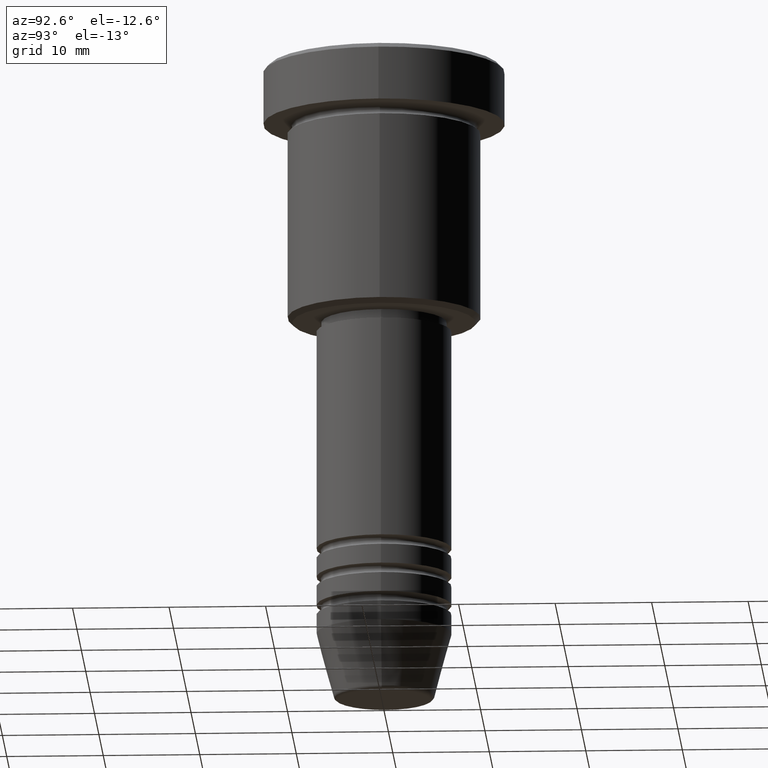
[diagram: clean part render]
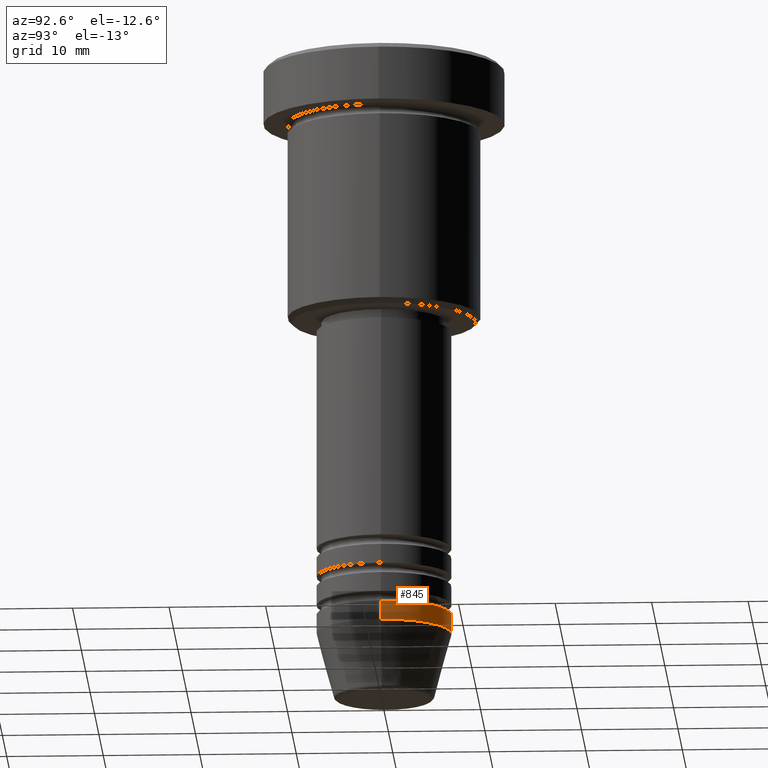
[diagram: same view with one face highlighted and labeled with its STEP entity id]
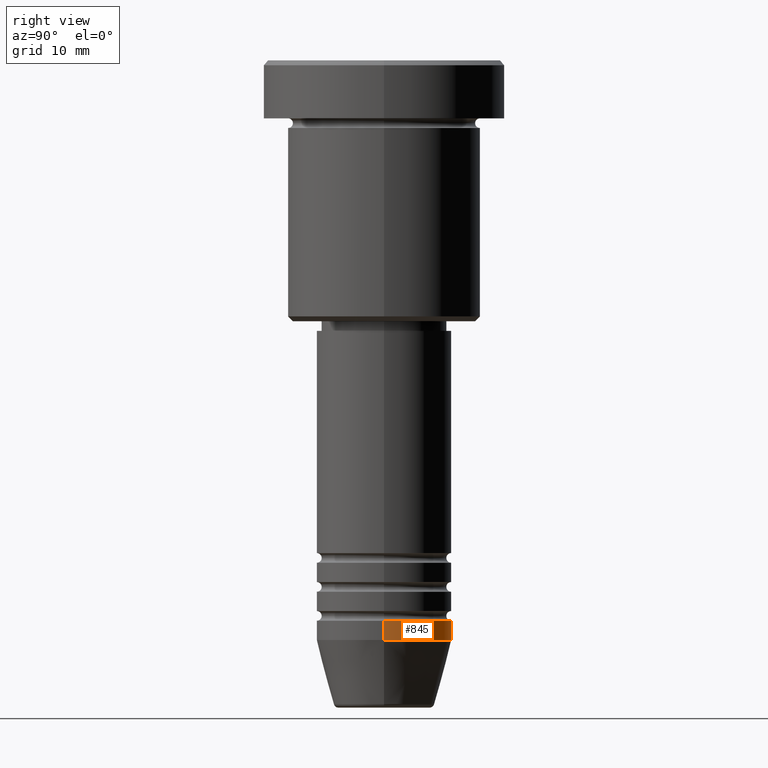
[diagram: same view with one face highlighted and labeled with its STEP entity id]
A machine part, auxiliary view. The second image highlights one B-rep face of the part: STEP entity #845.
A second angle (right view) of the same face is appended — the face is thin or edge-on in the first view.
In plain terms, the highlighted cylindrical surface (partial cylindrical patch) has radius 7 mm, axis along (-0, -0, 1).
Its self-contained STEP definition (entity closure, byte-faithful):
#9 = CARTESIAN_POINT ( 'NONE',  ( 0.000000000000000000, 0.000000000000000000, -57.99999999999999289 ) ) ;
#15 = DIRECTION ( 'NONE',  ( 1.000000000000000000, 0.000000000000000000, 0.000000000000000000 ) ) ;
#79 = ORIENTED_EDGE ( 'NONE', *, *, #1121, .F. ) ;
#86 = LINE ( 'NONE', #1019, #776 ) ;
#91 = LINE ( 'NONE', #812, #874 ) ;
#156 = EDGE_CURVE ( 'NONE', #1133, #604, #86, .T. ) ;
#165 = EDGE_CURVE ( 'NONE', #1085, #544, #91, .T. ) ;
#207 = CARTESIAN_POINT ( 'NONE',  ( 7.000000000000000000, 0.000000000000000000, -60.00000000000000000 ) ) ;
#215 = CARTESIAN_POINT ( 'NONE',  ( -7.000000000000000000, 8.572527594031473190E-16, -60.00000000000000000 ) ) ;
#277 = AXIS2_PLACEMENT_3D ( 'NONE', #677, #595, #765 ) ;
#318 = FACE_OUTER_BOUND ( 'NONE', #541, .T. ) ;
#382 = DIRECTION ( 'NONE',  ( -0.000000000000000000, -0.000000000000000000, 1.000000000000000000 ) ) ;
#421 = DIRECTION ( 'NONE',  ( 1.000000000000000000, 0.000000000000000000, 0.000000000000000000 ) ) ;
#423 = CIRCLE ( 'NONE', #1011, 7.000000000000000000 ) ;
#447 = EDGE_CURVE ( 'NONE', #1085, #1133, #423, .T. ) ;
#541 = EDGE_LOOP ( 'NONE', ( #548, #1126, #79, #722 ) ) ;
#544 = VERTEX_POINT ( 'NONE', #1070 ) ;
#548 = ORIENTED_EDGE ( 'NONE', *, *, #447, .T. ) ;
#558 = CIRCLE ( 'NONE', #824, 7.000000000000000000 ) ;
#595 = DIRECTION ( 'NONE',  ( -0.000000000000000000, -0.000000000000000000, 1.000000000000000000 ) ) ;
#599 = CYLINDRICAL_SURFACE ( 'NONE', #277, 7.000000000000000000 ) ;
#604 = VERTEX_POINT ( 'NONE', #788 ) ;
#632 = DIRECTION ( 'NONE',  ( -0.000000000000000000, -0.000000000000000000, 1.000000000000000000 ) ) ;
#677 = CARTESIAN_POINT ( 'NONE',  ( 0.000000000000000000, 0.000000000000000000, 0.000000000000000000 ) ) ;
#722 = ORIENTED_EDGE ( 'NONE', *, *, #165, .F. ) ;
#765 = DIRECTION ( 'NONE',  ( 1.000000000000000000, 0.000000000000000000, 0.000000000000000000 ) ) ;
#776 = VECTOR ( 'NONE', #923, 1000.000000000000000 ) ;
#788 = CARTESIAN_POINT ( 'NONE',  ( -7.000000000000000000, 8.572527594031473190E-16, -57.99999999999999289 ) ) ;
#798 = DIRECTION ( 'NONE',  ( -0.000000000000000000, -0.000000000000000000, 1.000000000000000000 ) ) ;
#812 = CARTESIAN_POINT ( 'NONE',  ( 7.000000000000000000, 0.000000000000000000, 0.000000000000000000 ) ) ;
#824 = AXIS2_PLACEMENT_3D ( 'NONE', #9, #382, #15 ) ;
#845 = ADVANCED_FACE ( 'NONE', ( #318 ), #599, .T. ) ;
#866 = CARTESIAN_POINT ( 'NONE',  ( 0.000000000000000000, 0.000000000000000000, -60.00000000000000000 ) ) ;
#874 = VECTOR ( 'NONE', #632, 1000.000000000000000 ) ;
#923 = DIRECTION ( 'NONE',  ( -0.000000000000000000, -0.000000000000000000, 1.000000000000000000 ) ) ;
#1011 = AXIS2_PLACEMENT_3D ( 'NONE', #866, #798, #421 ) ;
#1019 = CARTESIAN_POINT ( 'NONE',  ( -7.000000000000000000, 8.572527594031473190E-16, 0.000000000000000000 ) ) ;
#1070 = CARTESIAN_POINT ( 'NONE',  ( 7.000000000000000000, 0.000000000000000000, -57.99999999999999289 ) ) ;
#1085 = VERTEX_POINT ( 'NONE', #207 ) ;
#1121 = EDGE_CURVE ( 'NONE', #544, #604, #558, .T. ) ;
#1126 = ORIENTED_EDGE ( 'NONE', *, *, #156, .T. ) ;
#1133 = VERTEX_POINT ( 'NONE', #215 ) ;